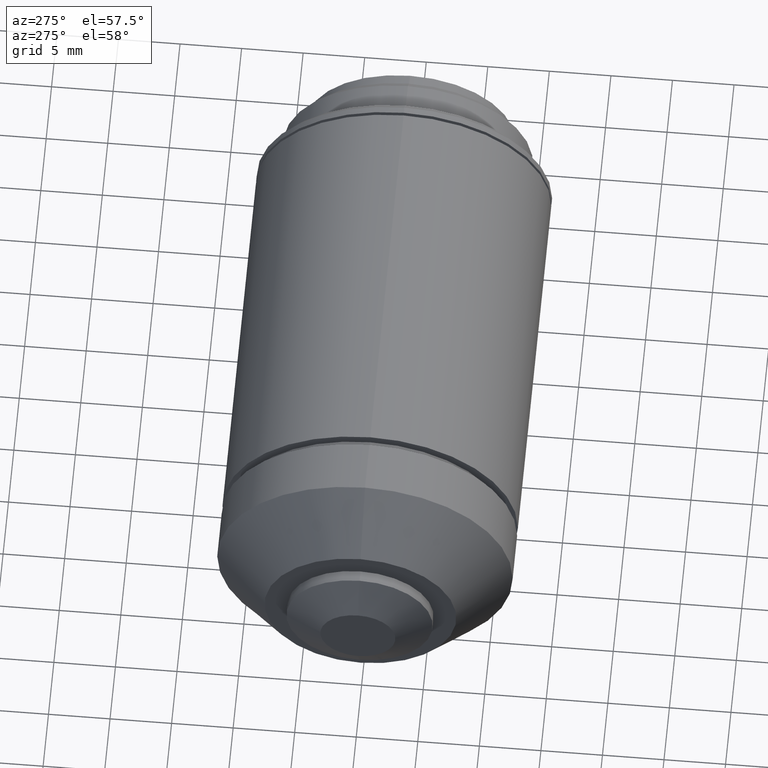
[diagram: clean part render]
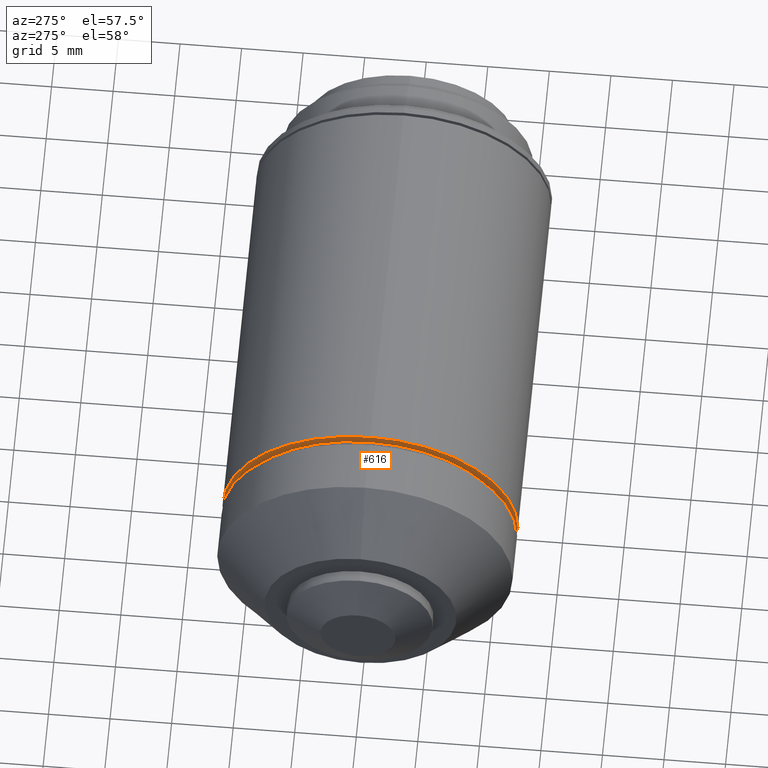
[diagram: same view with one face highlighted and labeled with its STEP entity id]
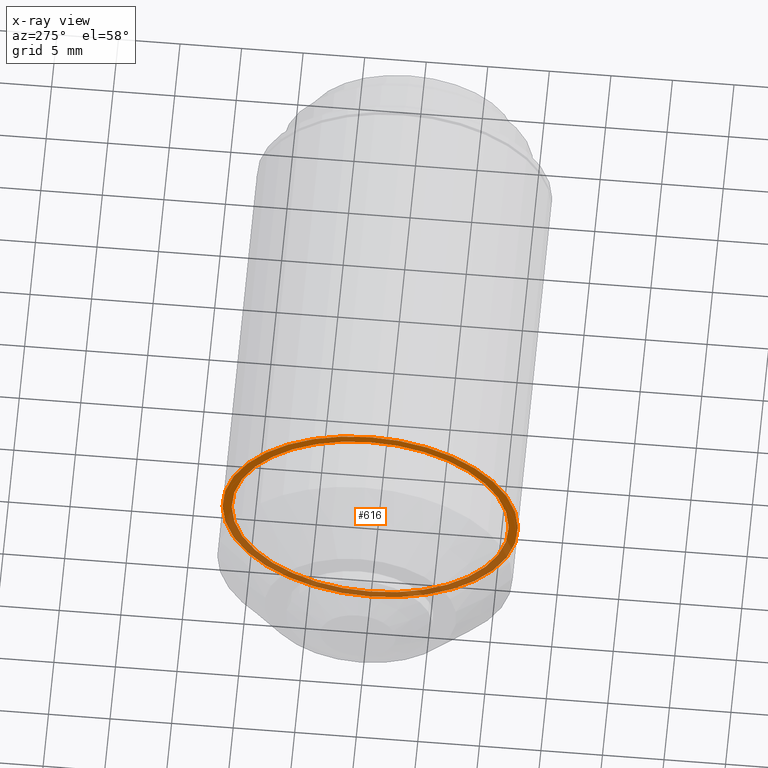
[diagram: x-ray of the same camera — body ghosted, the highlighted face saturated]
A machine part, auxiliary view. The second image highlights one B-rep face of the part: STEP entity #616.
The next image is the same camera in x-ray: the body ghosted, the highlighted face saturated — about 44% of this face is hidden behind the body in this view.
In plain terms, the highlighted planar face has unit normal (-1, 0, 0).
Its self-contained STEP definition (entity closure, byte-faithful):
#23 = EDGE_CURVE ( 'NONE', #556, #890, #145, .T. ) ;
#36 = EDGE_CURVE ( 'NONE', #728, #763, #770, .T. ) ;
#49 = DIRECTION ( 'NONE',  ( 1.000000000000000000, 0.000000000000000000, 0.000000000000000000 ) ) ;
#60 = EDGE_LOOP ( 'NONE', ( #759, #571 ) ) ;
#69 = CIRCLE ( 'NONE', #209, 11.25000000000000000 ) ;
#90 = DIRECTION ( 'NONE',  ( 1.000000000000000000, 0.000000000000000000, 0.000000000000000000 ) ) ;
#130 = DIRECTION ( 'NONE',  ( 0.000000000000000000, 0.000000000000000000, 1.000000000000000000 ) ) ;
#145 = CIRCLE ( 'NONE', #462, 11.25000000000000000 ) ;
#158 = CARTESIAN_POINT ( 'NONE',  ( -37.04999999999999716, 1.469576158976823947E-15, 12.00000000000000000 ) ) ;
#190 = CARTESIAN_POINT ( 'NONE',  ( -37.04999999999999716, 0.000000000000000000, -11.25000000000000000 ) ) ;
#196 = CARTESIAN_POINT ( 'NONE',  ( -37.04999999999999716, 0.000000000000000000, -12.00000000000000000 ) ) ;
#205 = CARTESIAN_POINT ( 'NONE',  ( -37.04999999999999716, 0.000000000000000000, 0.000000000000000000 ) ) ;
#209 = AXIS2_PLACEMENT_3D ( 'NONE', #891, #49, #375 ) ;
#232 = EDGE_LOOP ( 'NONE', ( #793, #502 ) ) ;
#375 = DIRECTION ( 'NONE',  ( 0.000000000000000000, 0.000000000000000000, -1.000000000000000000 ) ) ;
#427 = DIRECTION ( 'NONE',  ( 0.000000000000000000, 0.000000000000000000, -1.000000000000000000 ) ) ;
#441 = DIRECTION ( 'NONE',  ( 1.000000000000000000, 0.000000000000000000, 0.000000000000000000 ) ) ;
#462 = AXIS2_PLACEMENT_3D ( 'NONE', #925, #90, #427 ) ;
#502 = ORIENTED_EDGE ( 'NONE', *, *, #720, .T. ) ;
#521 = AXIS2_PLACEMENT_3D ( 'NONE', #989, #441, #873 ) ;
#538 = FACE_BOUND ( 'NONE', #232, .T. ) ;
#556 = VERTEX_POINT ( 'NONE', #190 ) ;
#562 = CARTESIAN_POINT ( 'NONE',  ( -37.04999999999999716, 1.377727649040771994E-15, 11.25000000000000000 ) ) ;
#571 = ORIENTED_EDGE ( 'NONE', *, *, #678, .F. ) ;
#616 = ADVANCED_FACE ( 'NONE', ( #632, #538 ), #964, .T. ) ;
#622 = CIRCLE ( 'NONE', #762, 12.00000000000000000 ) ;
#632 = FACE_OUTER_BOUND ( 'NONE', #60, .T. ) ;
#678 = EDGE_CURVE ( 'NONE', #763, #728, #622, .T. ) ;
#720 = EDGE_CURVE ( 'NONE', #890, #556, #69, .T. ) ;
#721 = DIRECTION ( 'NONE',  ( 1.000000000000000000, 0.000000000000000000, 0.000000000000000000 ) ) ;
#728 = VERTEX_POINT ( 'NONE', #196 ) ;
#759 = ORIENTED_EDGE ( 'NONE', *, *, #36, .F. ) ;
#762 = AXIS2_PLACEMENT_3D ( 'NONE', #205, #721, #1061 ) ;
#763 = VERTEX_POINT ( 'NONE', #158 ) ;
#770 = CIRCLE ( 'NONE', #521, 12.00000000000000000 ) ;
#793 = ORIENTED_EDGE ( 'NONE', *, *, #23, .T. ) ;
#795 = DIRECTION ( 'NONE',  ( -1.000000000000000000, 0.000000000000000000, 0.000000000000000000 ) ) ;
#805 = CARTESIAN_POINT ( 'NONE',  ( -37.04999999999999716, 11.25000000000000000, 0.000000000000000000 ) ) ;
#867 = AXIS2_PLACEMENT_3D ( 'NONE', #805, #795, #130 ) ;
#873 = DIRECTION ( 'NONE',  ( 0.000000000000000000, 0.000000000000000000, -1.000000000000000000 ) ) ;
#890 = VERTEX_POINT ( 'NONE', #562 ) ;
#891 = CARTESIAN_POINT ( 'NONE',  ( -37.04999999999999716, 0.000000000000000000, 0.000000000000000000 ) ) ;
#925 = CARTESIAN_POINT ( 'NONE',  ( -37.04999999999999716, 0.000000000000000000, 0.000000000000000000 ) ) ;
#964 = PLANE ( 'NONE',  #867 ) ;
#989 = CARTESIAN_POINT ( 'NONE',  ( -37.04999999999999716, 0.000000000000000000, 0.000000000000000000 ) ) ;
#1061 = DIRECTION ( 'NONE',  ( 0.000000000000000000, 0.000000000000000000, -1.000000000000000000 ) ) ;